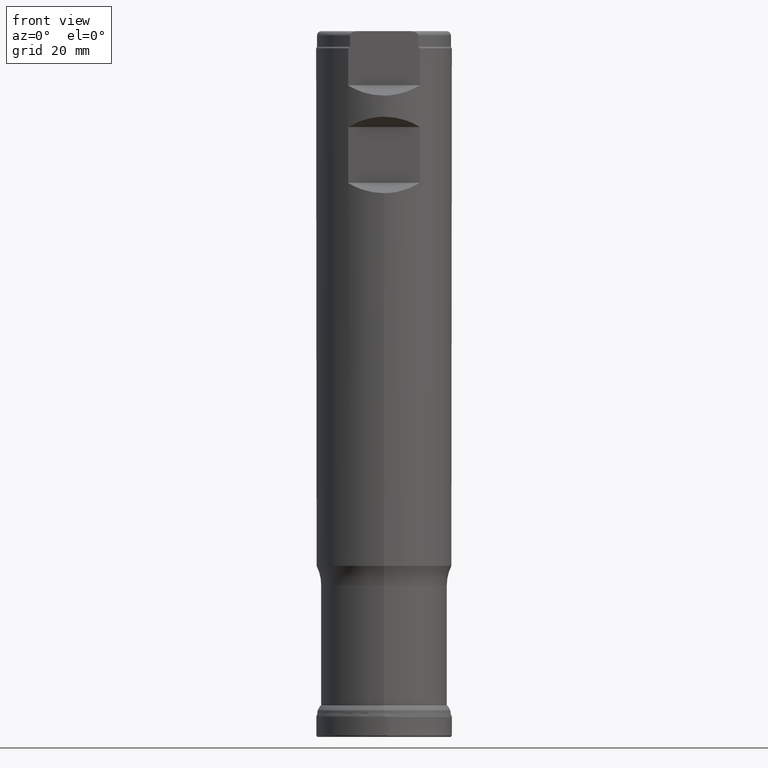
[diagram: clean part render]
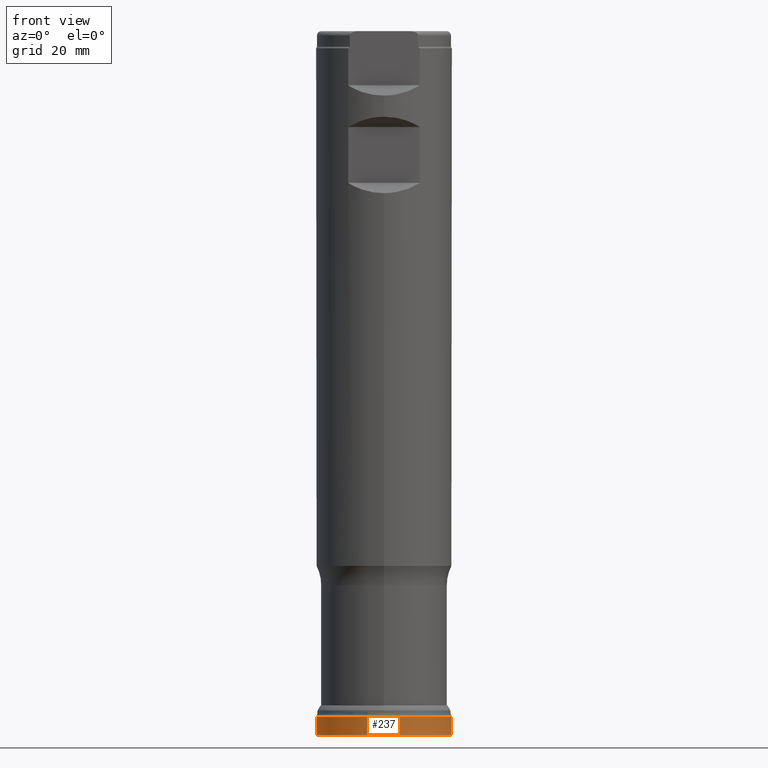
[diagram: same view with one face highlighted and labeled with its STEP entity id]
A machine part, front view. The second image highlights one B-rep face of the part: STEP entity #237.
In plain terms, the highlighted face is a SurfaceOfRevolution surface.
Its self-contained STEP definition (entity closure, byte-faithful):
#128=SURFACE_OF_REVOLUTION('',#809,#149);
#149=AXIS1_PLACEMENT('',#1672,#1077);
#237=ADVANCED_FACE('',(#367,#368),#128,.F.);
#267=CIRCLE('',#865,15.875);
#287=CIRCLE('',#885,15.8749999642686);
#367=FACE_BOUND('',#457,.T.);
#368=FACE_BOUND('',#458,.T.);
#457=EDGE_LOOP('',(#634));
#458=EDGE_LOOP('',(#635));
#634=ORIENTED_EDGE('',*,*,#763,.T.);
#635=ORIENTED_EDGE('',*,*,#743,.F.);
#675=VERTEX_POINT('',#1485);
#695=VERTEX_POINT('',#1647);
#743=EDGE_CURVE('',#675,#675,#267,.T.);
#763=EDGE_CURVE('',#695,#695,#287,.T.);
#809=B_SPLINE_CURVE_WITH_KNOTS('',3,(#1660,#1661,#1662,#1663,#1664,#1665,
#1666,#1667,#1668,#1669,#1670,#1671),.UNSPECIFIED.,.F.,.F.,(4,1,1,1,1,1,
1,1,1,4),(0.,0.221418157861957,0.365983083750147,0.510548009638337,0.655112935526528,
0.799677861414718,0.871960324358813,0.90810155583086,0.944242787302908,
1.),.UNSPECIFIED.);
#865=AXIS2_PLACEMENT_3D('',#1484,#1009,#1010);
#885=AXIS2_PLACEMENT_3D('',#1646,#1074,#1075);
#1009=DIRECTION('',(0.,1.17145536458252E-15,1.));
#1010=DIRECTION('',(0.,-1.,1.14737615733899E-15));
#1074=DIRECTION('',(0.,1.17145536458252E-15,1.));
#1075=DIRECTION('',(0.,-1.,1.17127982991987E-15));
#1077=DIRECTION('',(0.,1.17145536458252E-15,1.));
#1484=CARTESIAN_POINT('',(0.,5.51529678885996E-15,4.70807250161467));
#1485=CARTESIAN_POINT('',(0.,-15.875,4.70807250161468));
#1646=CARTESIAN_POINT('',(0.,4.59921760776596E-16,0.392607157457083));
#1647=CARTESIAN_POINT('',(0.,-15.8749999642686,0.392607157457102));
#1660=CARTESIAN_POINT('',(15.8425235121466,-1.01492549829107,4.70807250161467));
#1661=CARTESIAN_POINT('',(15.8461565177536,-1.10020475077174,4.38980612042258));
#1662=CARTESIAN_POINT('',(15.8483805281153,-1.24117432183105,3.86370059295338));
#1663=CARTESIAN_POINT('',(15.8390694091797,-1.43780571739473,3.12986191923738));
#1664=CARTESIAN_POINT('',(15.8224178353493,-1.60479548571147,2.50664705720751));
#1665=CARTESIAN_POINT('',(15.7981364430541,-1.77172392263989,1.88366082987139));
#1666=CARTESIAN_POINT('',(15.7744160904378,-1.91071241605558,1.36462005509773));
#1667=CARTESIAN_POINT('',(15.7566408655823,-2.00825391568342,1.00140926108247));
#1668=CARTESIAN_POINT('',(15.7461884600274,-2.06349646548573,0.793765557072037));
#1669=CARTESIAN_POINT('',(15.736416394409,-2.11406745399222,0.610121558342135));
#1670=CARTESIAN_POINT('',(15.7319599962928,-2.13402114132471,0.474848150035781));
#1671=CARTESIAN_POINT('',(15.7293861401562,-2.14523553937342,0.392607157457086));
#1672=CARTESIAN_POINT('',(0.,0.,0.));